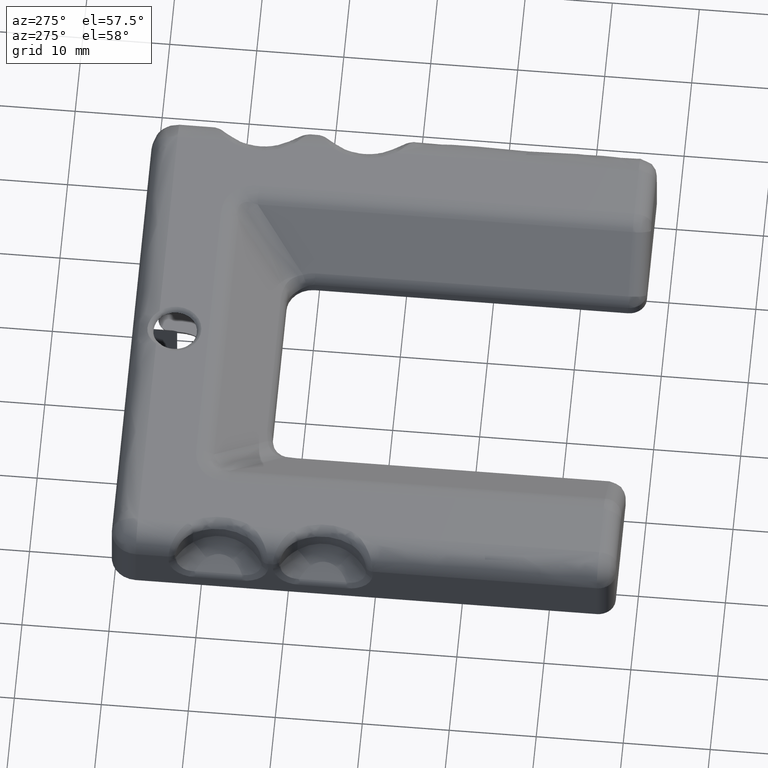
[diagram: clean part render]
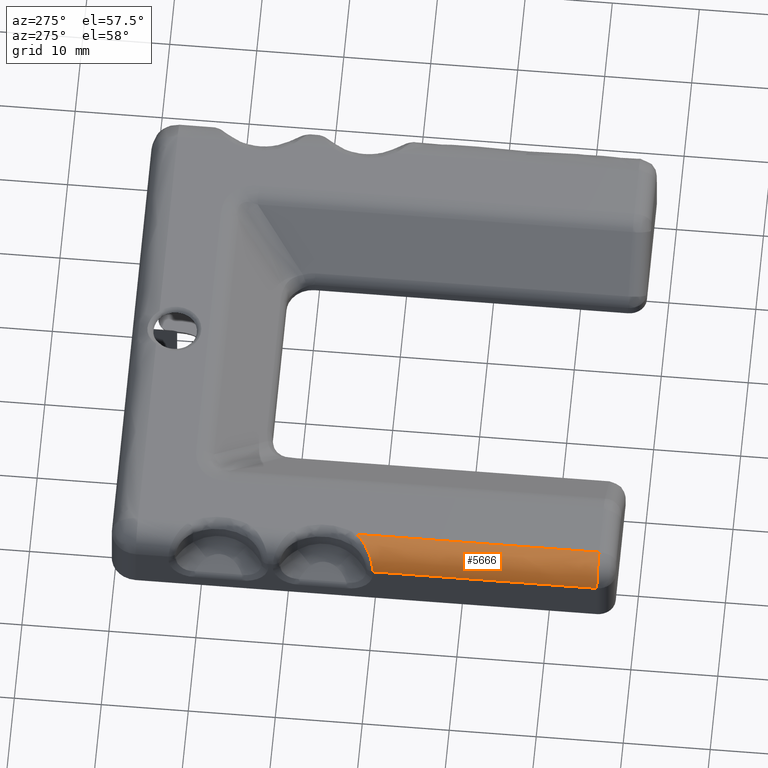
[diagram: same view with one face highlighted and labeled with its STEP entity id]
A machine part, auxiliary view. The second image highlights one B-rep face of the part: STEP entity #5666.
In plain terms, the highlighted face is a freeform B-spline surface patch.
Its self-contained STEP definition (entity closure, byte-faithful):
#3171=CARTESIAN_POINT('',(-25.999999999495749,-28.104561531813300,9.500000000004695));
#3172=VERTEX_POINT('',#3171);
#3186=CARTESIAN_POINT('',(-25.999999999495749,-55.999999999868997,9.500000000004871));
#3187=VERTEX_POINT('',#3186);
#3188=CARTESIAN_POINT('',(-25.999999999495749,-28.104561531813300,9.500000000004695));
#3189=CARTESIAN_POINT('',(-25.999999999495749,-55.999999999868997,9.500000000004871));
#3190=QUASI_UNIFORM_CURVE('',1,(#3188,#3189),.UNSPECIFIED.,.F.,.U.);
#3191=EDGE_CURVE('',#3172,#3187,#3190,.T.);
#4546=CARTESIAN_POINT('',(-28.999999999495749,-55.999999999868997,6.500000000004870));
#4547=VERTEX_POINT('',#4546);
#4635=CARTESIAN_POINT('',(-28.999999999495749,-30.242699072729199,6.500000000004715));
#4636=VERTEX_POINT('',#4635);
#4637=CARTESIAN_POINT('',(-28.999999999495749,-55.999999999868997,6.500000000004870));
#4638=CARTESIAN_POINT('',(-28.999999999495749,-30.242699072729199,6.500000000004715));
#4639=QUASI_UNIFORM_CURVE('',1,(#4637,#4638),.UNSPECIFIED.,.F.,.U.);
#4640=EDGE_CURVE('',#4547,#4636,#4639,.T.);
#5600=CARTESIAN_POINT('',(-28.998971974422421,-27.407175570111921,6.421469155081076));
#5601=CARTESIAN_POINT('',(-28.998971974422421,-56.714820610612961,6.421469155081255));
#5602=CARTESIAN_POINT('',(-29.085476779994540,-27.407175570111907,9.724954401668855));
#5603=CARTESIAN_POINT('',(-29.085476779994540,-56.714820610612939,9.724954401669029));
#5604=CARTESIAN_POINT('',(-25.789039772617794,-27.407175570111921,9.492573438147128));
#5605=CARTESIAN_POINT('',(-25.789039772617805,-56.714820610612946,9.492573438147304));
#5613=(BOUNDED_SURFACE()B_SPLINE_SURFACE(1,2,((#5600,#5602,#5604),(#5601,#5603,#5605)),.UNSPECIFIED.,.F.,.F.,.U.)B_SPLINE_SURFACE_WITH_KNOTS((2,2),(3,3),(0.0,29.307645040501040),(0.0,5.313427032265090),.UNSPECIFIED.)GEOMETRIC_REPRESENTATION_ITEM()RATIONAL_B_SPLINE_SURFACE(((1.0,0.670944223154768,0.996392648609106),(1.0,0.670944223154768,0.996392648609106)))REPRESENTATION_ITEM('')SURFACE());
#5614=ORIENTED_EDGE('',*,*,#3191,.F.);
#5615=CARTESIAN_POINT('',(-25.999999999495749,-28.104561531813300,9.500000000004695));
#5616=CARTESIAN_POINT('',(-26.149692568110879,-28.270570697570339,9.499999999924286));
#5617=CARTESIAN_POINT('',(-26.305371177402570,-28.427656879408229,9.488825995230497));
#5618=CARTESIAN_POINT('',(-26.625982514758569,-28.725764499538940,9.438448277007190));
#5619=CARTESIAN_POINT('',(-26.790930587713611,-28.866782659821421,9.399308752665304));
#5620=CARTESIAN_POINT('',(-27.043427478238911,-29.067150913476809,9.314098382482865));
#5621=CARTESIAN_POINT('',(-27.128722786614979,-29.132278000857269,9.281119413583509));
#5622=CARTESIAN_POINT('',(-27.298735225476559,-29.257506236534368,9.205905973157446));
#5623=CARTESIAN_POINT('',(-27.383392083635819,-29.317572978164630,9.163705120832271));
#5624=CARTESIAN_POINT('',(-27.633026190707682,-29.488912801593479,9.023810606122648));
#5625=CARTESIAN_POINT('',(-27.794642261363130,-29.592064811873890,8.912563100624345));
#5626=CARTESIAN_POINT('',(-27.987533695810839,-29.708555158168330,8.747728832331179));
#5627=CARTESIAN_POINT('',(-28.025770581907029,-29.731295972287182,8.713346588820201));
#5628=CARTESIAN_POINT('',(-28.100509048501799,-29.775126002724232,8.642547854739306));
#5629=CARTESIAN_POINT('',(-28.137014534004891,-29.796220527136761,8.606142733942461));
#5630=CARTESIAN_POINT('',(-28.243876881858821,-29.857164992375420,8.493913208367914));
#5631=CARTESIAN_POINT('',(-28.311585270213289,-29.894682232355301,8.415081643391410));
#5632=CARTESIAN_POINT('',(-28.439482674004449,-29.963983759529579,8.249253682409556));
#5633=CARTESIAN_POINT('',(-28.499674290547169,-29.995768169292969,8.162259331136633));
#5634=CARTESIAN_POINT('',(-28.583827298364842,-30.039358490009860,8.025354352585934));
#5635=CARTESIAN_POINT('',(-28.610854026079181,-30.053205931235748,7.978648339012866));
#5636=CARTESIAN_POINT('',(-28.662748148560549,-30.079550177381090,7.883015528923501));
#5637=CARTESIAN_POINT('',(-28.687611328999200,-30.092043869993219,7.834064221072834));
#5638=CARTESIAN_POINT('',(-28.804537140903840,-30.150318385547600,7.587328603975196));
#5639=CARTESIAN_POINT('',(-28.876270956181571,-30.184546615463809,7.380879430494414));
#5640=CARTESIAN_POINT('',(-28.937559451298782,-30.213512804815799,7.111391581833535));
#5641=CARTESIAN_POINT('',(-28.948383405519529,-30.218602390498440,7.056915863386954));
#5642=CARTESIAN_POINT('',(-28.967071100239188,-30.227363965593881,6.946776309735141));
#5643=CARTESIAN_POINT('',(-28.974918869359669,-30.231028464885551,6.891141444628495));
#5644=CARTESIAN_POINT('',(-28.993701245415160,-30.239783453661591,6.724250971194803));
#5645=CARTESIAN_POINT('',(-28.999999999495749,-30.242699072729199,6.612415730344774));
#5646=CARTESIAN_POINT('',(-28.999999999495749,-30.242699072729199,6.500000000004712));
#5647=B_SPLINE_CURVE_WITH_KNOTS('',3,(#5615,#5616,#5617,#5618,#5619,#5620,#5621,#5622,#5623,#5624,#5625,#5626,#5627,#5628,#5629,#5630,#5631,#5632,#5633,#5634,#5635,#5636,#5637,#5638,#5639,#5640,#5641,#5642,#5643,#5644,#5645,#5646),.UNSPECIFIED.,.F.,.U.,(4,2,2,2,2,2,2,2,2,2,2,2,2,2,2,4),(0.0,0.125000000000002,0.250000000000003,0.312500000000004,0.375000000000005,0.500000000000005,0.531250000000004,0.562500000000002,0.625000000000001,0.687499999999999,0.718749999999999,0.749999999999999,0.874999999999999,0.906250000000000,0.937500000000000,1.0),.UNSPECIFIED.);
#5648=EDGE_CURVE('',#3172,#4636,#5647,.T.);
#5649=ORIENTED_EDGE('',*,*,#5648,.T.);
#5650=ORIENTED_EDGE('',*,*,#4640,.F.);
#5651=CARTESIAN_POINT('',(-28.999999999495749,-55.999999999868997,6.500000000004870));
#5652=CARTESIAN_POINT('',(-28.999999999495749,-55.999999999869011,9.500000000004869));
#5653=CARTESIAN_POINT('',(-25.999999999495749,-55.999999999868997,9.500000000004869));
#5661=(BOUNDED_CURVE()B_SPLINE_CURVE(2,(#5651,#5652,#5653),.UNSPECIFIED.,.F.,.U.)CURVE()GEOMETRIC_REPRESENTATION_ITEM()QUASI_UNIFORM_CURVE()RATIONAL_B_SPLINE_CURVE((1.0,0.707106781186548,1.0))REPRESENTATION_ITEM(''));
#5662=EDGE_CURVE('',#4547,#3187,#5661,.T.);
#5663=ORIENTED_EDGE('',*,*,#5662,.T.);
#5664=EDGE_LOOP('',(#5614,#5649,#5650,#5663));
#5665=FACE_OUTER_BOUND('',#5664,.T.);
#5666=ADVANCED_FACE('',(#5665),#5613,.T.);